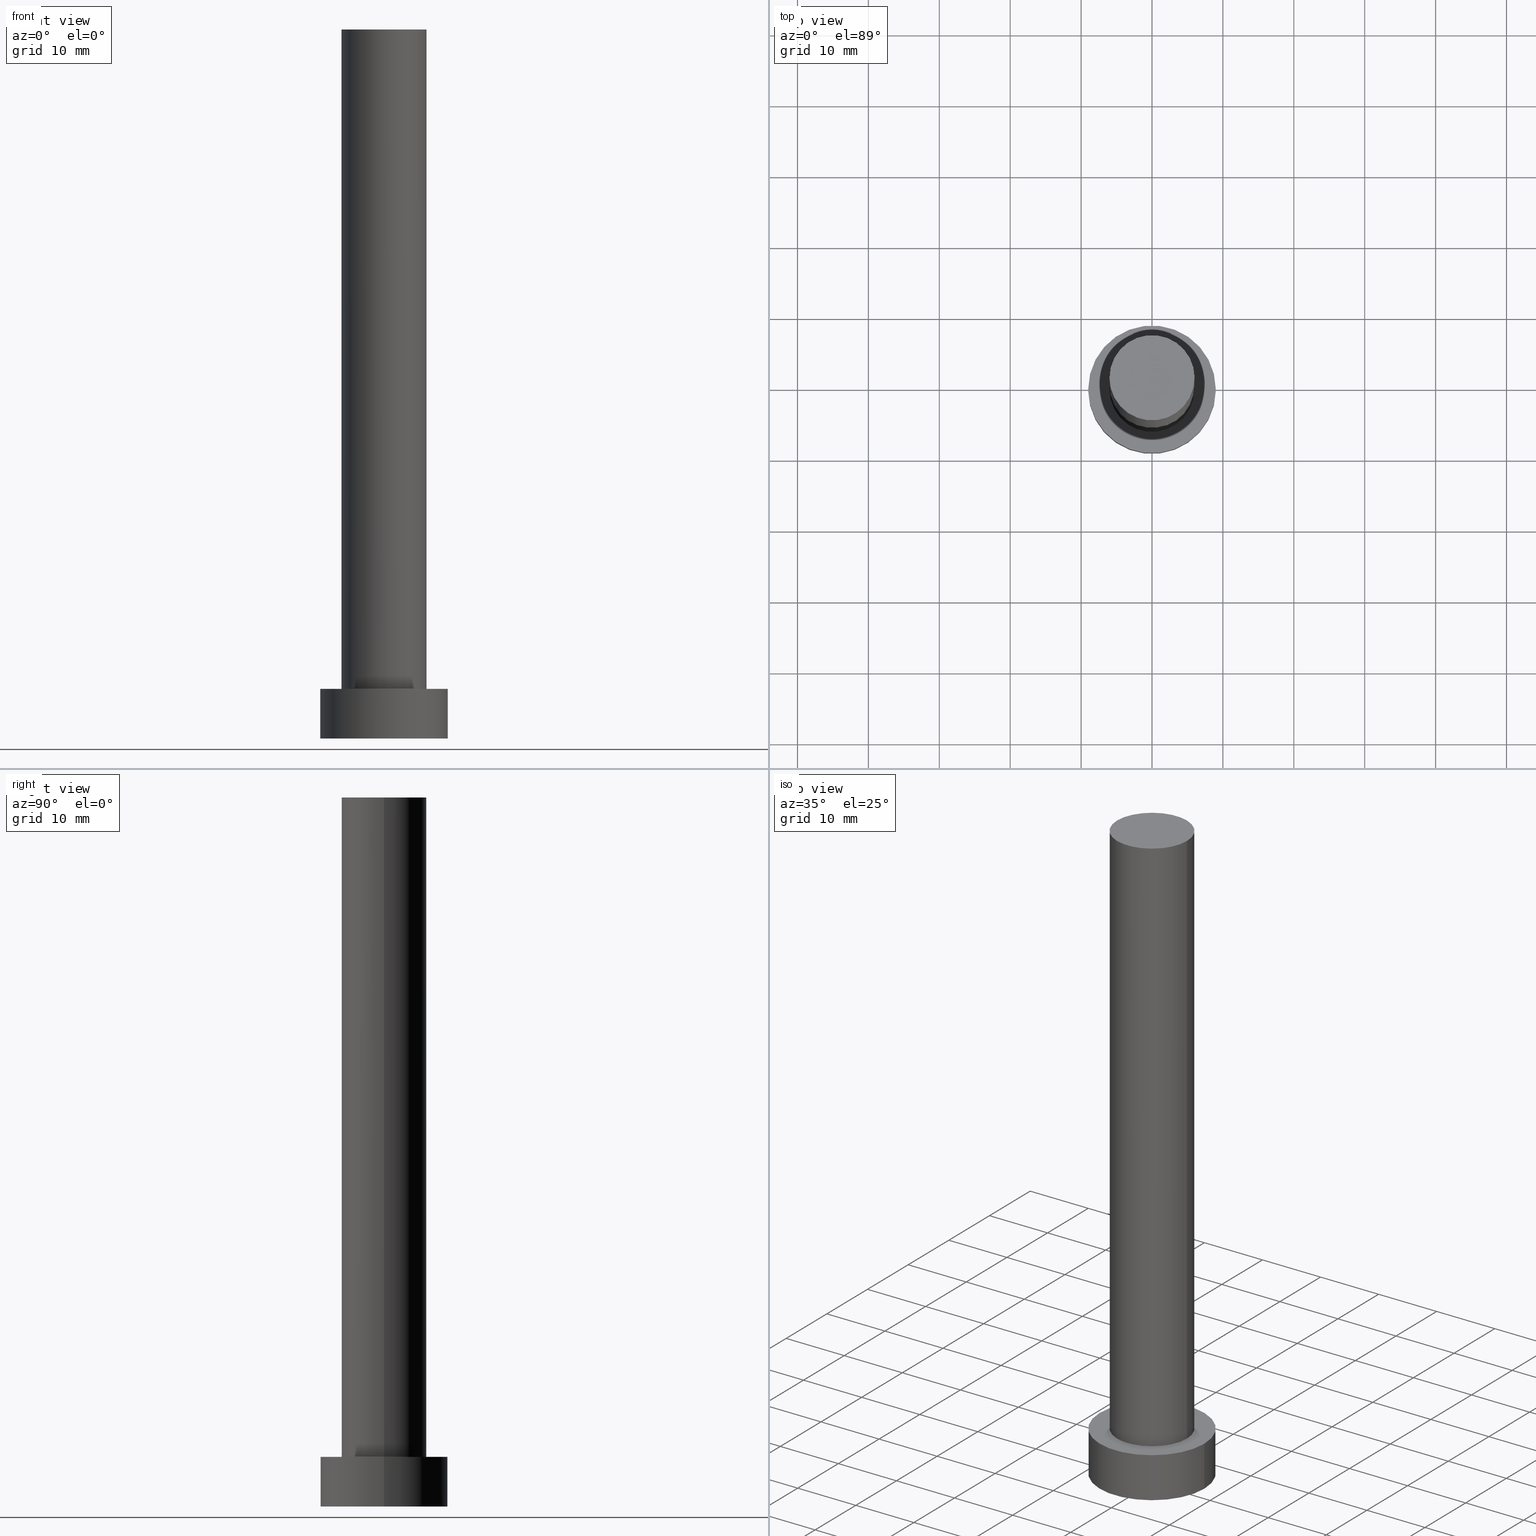
[diagram: canonical four-view strip — front | top / right | iso, engineering-drawing reading convention]
A machine part, canonical four-view strip (front | top / right | iso — engineering-drawing reading convention). The complete STEP part file that produces these views, byte-faithful:
ISO-10303-21;
HEADER;
FILE_DESCRIPTION (( 'STEP AP203' ),
    '1' );
FILE_NAME ('8138.STEP',
    '2023-02-13T09:56:06',
    ( '' ),
    ( '' ),
    'SwSTEP 2.0',
    'SolidWorks 2019',
    '' );
FILE_SCHEMA (( 'CONFIG_CONTROL_DESIGN' ));
ENDSEC;

DATA;
#1 = EDGE_CURVE ( 'NONE', #107, #247, #118, .T. ) ;
#2 = EDGE_LOOP ( 'NONE', ( #39, #7, #182, #8 ) ) ;
#3 = VERTEX_POINT ( 'NONE', #224 ) ;
#4 = CYLINDRICAL_SURFACE ( 'NONE', #234, 6.000000000000000888 ) ;
#5 = AXIS2_PLACEMENT_3D ( 'NONE', #243, #191, #148 ) ;
#6 = MANIFOLD_SOLID_BREP ( 'P�idat vysunut�m3', #134 ) ;
#7 = ORIENTED_EDGE ( 'NONE', *, *, #238, .T. ) ;
#8 = ORIENTED_EDGE ( 'NONE', *, *, #66, .F. ) ;
#9 = CARTESIAN_POINT ( 'NONE',  ( 0.000000000000000000, 0.000000000000000000, 7.000000000000000000 ) ) ;
#10 = EDGE_LOOP ( 'NONE', ( #202, #185, #108, #140 ) ) ;
#11 = CIRCLE ( 'NONE', #218, 6.000000000000000888 ) ;
#12 = FACE_OUTER_BOUND ( 'NONE', #184, .T. ) ;
#13 = CC_DESIGN_APPROVAL ( #116, ( #161 ) ) ;
#14 = CARTESIAN_POINT ( 'NONE',  ( -6.000000000000000888, 0.000000000000000000, 7.000000000000000000 ) ) ;
#15 = APPROVAL_STATUS ( 'not_yet_approved' ) ;
#16 = DIRECTION ( 'NONE',  ( 1.000000000000000000, 0.000000000000000000, 0.000000000000000000 ) ) ;
#17 = CIRCLE ( 'NONE', #106, 6.000000000000000888 ) ;
#18 = APPROVAL_STATUS ( 'not_yet_approved' ) ;
#19 = CALENDAR_DATE ( 2023, 13, 2 ) ;
#20 = CC_DESIGN_PERSON_AND_ORGANIZATION_ASSIGNMENT ( #113, #44, ( #50 ) ) ;
#21 = CARTESIAN_POINT ( 'NONE',  ( 0.000000000000000000, 0.000000000000000000, 100.0000000000000000 ) ) ;
#22 = APPLICATION_PROTOCOL_DEFINITION ( 'international standard', 'config_control_design', 1994, #76 ) ;
#23 = APPROVAL_STATUS ( 'not_yet_approved' ) ;
#24 = DIRECTION ( 'NONE',  ( 0.000000000000000000, 0.000000000000000000, 1.000000000000000000 ) ) ;
#25 = AXIS2_PLACEMENT_3D ( 'NONE', #123, #204, #162 ) ;
#26 = DIRECTION ( 'NONE',  ( -0.000000000000000000, -0.000000000000000000, -1.000000000000000000 ) ) ;
#27 = APPLICATION_CONTEXT ( 'configuration controlled 3d designs of mechanical parts and assemblies' ) ;
#28 = MECHANICAL_CONTEXT ( 'NONE', #27, 'mechanical' ) ;
#29 = ORIENTED_EDGE ( 'NONE', *, *, #221, .F. ) ;
#30 = ORIENTED_EDGE ( 'NONE', *, *, #33, .F. ) ;
#31 = DIRECTION ( 'NONE',  ( 0.000000000000000000, 0.000000000000000000, 1.000000000000000000 ) ) ;
#32 = DIRECTION ( 'NONE',  ( 0.000000000000000000, 0.000000000000000000, 1.000000000000000000 ) ) ;
#33 = EDGE_CURVE ( 'NONE', #37, #242, #17, .T. ) ;
#34 = CARTESIAN_POINT ( 'NONE',  ( 0.000000000000000000, 0.000000000000000000, 7.000000000000000000 ) ) ;
#35 = APPROVAL_PERSON_ORGANIZATION ( #236, #158, #231 ) ;
#36 = CARTESIAN_POINT ( 'NONE',  ( 6.000000000000000888, 7.347880794884119736E-16, 100.0000000000000000 ) ) ;
#37 = VERTEX_POINT ( 'NONE', #14 ) ;
#38 = SHAPE_DEFINITION_REPRESENTATION ( #176, #175 ) ;
#39 = ORIENTED_EDGE ( 'NONE', *, *, #241, .F. ) ;
#40 = PERSON_AND_ORGANIZATION_ROLE ( 'creator' ) ;
#41 = LINE ( 'NONE', #249, #43 ) ;
#42 = PERSON_AND_ORGANIZATION ( #58, #64 ) ;
#43 = VECTOR ( 'NONE', #81, 1000.000000000000000 ) ;
#44 = PERSON_AND_ORGANIZATION_ROLE ( 'creator' ) ;
#45 = FACE_OUTER_BOUND ( 'NONE', #10, .T. ) ;
#46 = ADVANCED_FACE ( 'NONE', ( #92 ), #165, .T. ) ;
#47 = AXIS2_PLACEMENT_3D ( 'NONE', #84, #138, #117 ) ;
#48 = CARTESIAN_POINT ( 'NONE',  ( 0.000000000000000000, 0.000000000000000000, 100.0000000000000000 ) ) ;
#49 = AXIS2_PLACEMENT_3D ( 'NONE', #9, #32, #230 ) ;
#50 = PRODUCT_DEFINITION_FORMATION_WITH_SPECIFIED_SOURCE ( 'LIBOVOLN�', '', #133, .NOT_KNOWN. ) ;
#51 = CARTESIAN_POINT ( 'NONE',  ( 0.000000000000000000, 0.000000000000000000, 0.000000000000000000 ) ) ;
#52 = EDGE_LOOP ( 'NONE', ( #239, #228 ) ) ;
#53 = FACE_OUTER_BOUND ( 'NONE', #52, .T. ) ;
#54 = EDGE_LOOP ( 'NONE', ( #29, #222, #144, #253 ) ) ;
#55 = PERSON_AND_ORGANIZATION_ROLE ( 'design_owner' ) ;
#56 = VECTOR ( 'NONE', #67, 1000.000000000000000 ) ;
#57 = CARTESIAN_POINT ( 'NONE',  ( 0.000000000000000000, 0.000000000000000000, 7.000000000000000000 ) ) ;
#58 = PERSON ( 'NEUR�EN�', 'NEUR�EN�', 'NEUR�EN�', ('NEUR�EN�'), ('NEUR�EN�'), ('NEUR�EN�') ) ;
#59 = DIRECTION ( 'NONE',  ( -1.000000000000000000, 0.000000000000000000, 0.000000000000000000 ) ) ;
#60 = CARTESIAN_POINT ( 'NONE',  ( 0.000000000000000000, 0.000000000000000000, 7.000000000000000000 ) ) ;
#61 = CIRCLE ( 'NONE', #178, 6.000000000000000888 ) ;
#62 = PERSON_AND_ORGANIZATION ( #58, #64 ) ;
#63 = CYLINDRICAL_SURFACE ( 'NONE', #254, 6.000000000000000888 ) ;
#64 = ORGANIZATION ( 'NEUR�EN�', 'NEUR�EN�', '' ) ;
#65 = APPROVAL_ROLE ( '' ) ;
#66 = EDGE_CURVE ( 'NONE', #223, #37, #150, .T. ) ;
#67 = DIRECTION ( 'NONE',  ( -0.000000000000000000, -0.000000000000000000, -1.000000000000000000 ) ) ;
#68 = CC_DESIGN_PERSON_AND_ORGANIZATION_ASSIGNMENT ( #169, #248, ( #50 ) ) ;
#69 = CARTESIAN_POINT ( 'NONE',  ( 9.000000000000000000, 1.102182119232617714E-15, 7.000000000000000000 ) ) ;
#70 = CC_DESIGN_PERSON_AND_ORGANIZATION_ASSIGNMENT ( #126, #55, ( #133 ) ) ;
#71 = VERTEX_POINT ( 'NONE', #36 ) ;
#72 = CC_DESIGN_PERSON_AND_ORGANIZATION_ASSIGNMENT ( #62, #132, ( #97 ) ) ;
#73 = ORIENTED_EDGE ( 'NONE', *, *, #201, .F. ) ;
#74 = VERTEX_POINT ( 'NONE', #233 ) ;
#75 = DIRECTION ( 'NONE',  ( -0.000000000000000000, -0.000000000000000000, -1.000000000000000000 ) ) ;
#76 = APPLICATION_CONTEXT ( 'configuration controlled 3d designs of mechanical parts and assemblies' ) ;
#77 = DIRECTION ( 'NONE',  ( 1.000000000000000000, 0.000000000000000000, 0.000000000000000000 ) ) ;
#78 = CC_DESIGN_PERSON_AND_ORGANIZATION_ASSIGNMENT ( #42, #40, ( #161 ) ) ;
#79 = DATE_AND_TIME ( #19, #179 ) ;
#80 = APPROVAL_DATE_TIME ( #209, #116 ) ;
#81 = DIRECTION ( 'NONE',  ( -0.000000000000000000, -0.000000000000000000, -1.000000000000000000 ) ) ;
#82 = COORDINATED_UNIVERSAL_TIME_OFFSET ( 1, 0, .AHEAD. ) ;
#83 = FACE_OUTER_BOUND ( 'NONE', #93, .T. ) ;
#84 = CARTESIAN_POINT ( 'NONE',  ( 0.000000000000000000, 0.000000000000000000, 7.000000000000000000 ) ) ;
#85 = CIRCLE ( 'NONE', #152, 9.000000000000000000 ) ;
#86 = DIRECTION ( 'NONE',  ( 1.000000000000000000, 0.000000000000000000, 0.000000000000000000 ) ) ;
#87 = CYLINDRICAL_SURFACE ( 'NONE', #47, 9.000000000000000000 ) ;
#88 = APPLICATION_PROTOCOL_DEFINITION ( 'international standard', 'config_control_design', 1994, #27 ) ;
#89 = APPROVAL_PERSON_ORGANIZATION ( #171, #116, #65 ) ;
#90 = ORIENTED_EDGE ( 'NONE', *, *, #177, .F. ) ;
#91 = CARTESIAN_POINT ( 'NONE',  ( 0.000000000000000000, 0.000000000000000000, 7.000000000000000000 ) ) ;
#92 = FACE_OUTER_BOUND ( 'NONE', #54, .T. ) ;
#93 = EDGE_LOOP ( 'NONE', ( #188, #122, #141, #73 ) ) ;
#94 = DESIGN_CONTEXT ( 'detailed design', #76, 'design' ) ;
#95 = COORDINATED_UNIVERSAL_TIME_OFFSET ( 1, 0, .AHEAD. ) ;
#96 = CIRCLE ( 'NONE', #240, 9.000000000000000000 ) ;
#97 = SECURITY_CLASSIFICATION ( '', '', #210 ) ;
#98 = COORDINATED_UNIVERSAL_TIME_OFFSET ( 1, 0, .AHEAD. ) ;
#99 = DIRECTION ( 'NONE',  ( 1.000000000000000000, 0.000000000000000000, 0.000000000000000000 ) ) ;
#100 =( NAMED_UNIT ( * ) SI_UNIT ( $, .STERADIAN. ) SOLID_ANGLE_UNIT ( ) );
#101 = AXIS2_PLACEMENT_3D ( 'NONE', #34, #131, #250 ) ;
#102 = LOCAL_TIME ( 10, 56, 6.000000000000000000, #98 ) ;
#103 = FACE_OUTER_BOUND ( 'NONE', #2, .T. ) ;
#104 = CARTESIAN_POINT ( 'NONE',  ( -9.000000000000000000, 0.000000000000000000, 7.000000000000000000 ) ) ;
#105 = ADVANCED_FACE ( 'NONE', ( #45 ), #63, .T. ) ;
#106 = AXIS2_PLACEMENT_3D ( 'NONE', #91, #147, #125 ) ;
#107 = VERTEX_POINT ( 'NONE', #69 ) ;
#108 = ORIENTED_EDGE ( 'NONE', *, *, #66, .T. ) ;
#109 = LOCAL_TIME ( 10, 56, 6.000000000000000000, #154 ) ;
#110 = ORIENTED_EDGE ( 'NONE', *, *, #196, .T. ) ;
#111 = ADVANCED_FACE ( 'NONE', ( #217 ), #139, .F. ) ;
#112 = CALENDAR_DATE ( 2023, 13, 2 ) ;
#113 = PERSON_AND_ORGANIZATION ( #58, #64 ) ;
#114 = DIRECTION ( 'NONE',  ( -1.000000000000000000, 0.000000000000000000, 0.000000000000000000 ) ) ;
#115 = CARTESIAN_POINT ( 'NONE',  ( 9.000000000000000000, 1.102182119232617714E-15, 7.000000000000000000 ) ) ;
#116 = APPROVAL ( #15, 'NEUR�EN�' ) ;
#117 = DIRECTION ( 'NONE',  ( -1.000000000000000000, 0.000000000000000000, 0.000000000000000000 ) ) ;
#118 = CIRCLE ( 'NONE', #49, 9.000000000000000000 ) ;
#119 = DIRECTION ( 'NONE',  ( 1.000000000000000000, 0.000000000000000000, -0.000000000000000000 ) ) ;
#120 = LOCAL_TIME ( 10, 56, 6.000000000000000000, #137 ) ;
#121 = ORIENTED_EDGE ( 'NONE', *, *, #173, .F. ) ;
#122 = ORIENTED_EDGE ( 'NONE', *, *, #221, .T. ) ;
#123 = CARTESIAN_POINT ( 'NONE',  ( 0.000000000000000000, 0.000000000000000000, 100.0000000000000000 ) ) ;
#124 = APPROVAL ( #18, 'NEUR�EN�' ) ;
#125 = DIRECTION ( 'NONE',  ( 1.000000000000000000, 0.000000000000000000, 0.000000000000000000 ) ) ;
#126 = PERSON_AND_ORGANIZATION ( #58, #64 ) ;
#127 = PLANE ( 'NONE',  #101 ) ;
#128 = CARTESIAN_POINT ( 'NONE',  ( -6.000000000000000888, 0.000000000000000000, 100.0000000000000000 ) ) ;
#129 = ADVANCED_FACE ( 'NONE', ( #103 ), #4, .T. ) ;
#130 = CIRCLE ( 'NONE', #145, 6.000000000000000888 ) ;
#131 = DIRECTION ( 'NONE',  ( 0.000000000000000000, 0.000000000000000000, 1.000000000000000000 ) ) ;
#132 = PERSON_AND_ORGANIZATION_ROLE ( 'classification_officer' ) ;
#133 = PRODUCT ( '8138', '8138', '', ( #28 ) ) ;
#134 = CLOSED_SHELL ( 'NONE', ( #129, #251, #46, #212, #111, #105, #151 ) ) ;
#135 = CC_DESIGN_SECURITY_CLASSIFICATION ( #97, ( #50 ) ) ;
#136 = DATE_AND_TIME ( #232, #156 ) ;
#137 = COORDINATED_UNIVERSAL_TIME_OFFSET ( 1, 0, .AHEAD. ) ;
#138 = DIRECTION ( 'NONE',  ( -0.000000000000000000, -0.000000000000000000, -1.000000000000000000 ) ) ;
#139 = PLANE ( 'NONE',  #187 ) ;
#140 = ORIENTED_EDGE ( 'NONE', *, *, #33, .T. ) ;
#141 = ORIENTED_EDGE ( 'NONE', *, *, #167, .T. ) ;
#142 = DIRECTION ( 'NONE',  ( 0.000000000000000000, 0.000000000000000000, 1.000000000000000000 ) ) ;
#143 = CC_DESIGN_DATE_AND_TIME_ASSIGNMENT ( #136, #194, ( #161 ) ) ;
#144 = ORIENTED_EDGE ( 'NONE', *, *, #201, .T. ) ;
#145 = AXIS2_PLACEMENT_3D ( 'NONE', #57, #142, #16 ) ;
#146 = CC_DESIGN_APPROVAL ( #158, ( #97 ) ) ;
#147 = DIRECTION ( 'NONE',  ( 0.000000000000000000, 0.000000000000000000, 1.000000000000000000 ) ) ;
#148 = DIRECTION ( 'NONE',  ( 1.000000000000000000, 0.000000000000000000, 0.000000000000000000 ) ) ;
#149 = CARTESIAN_POINT ( 'NONE',  ( 0.000000000000000000, 0.000000000000000000, 0.000000000000000000 ) ) ;
#150 = LINE ( 'NONE', #128, #56 ) ;
#151 = ADVANCED_FACE ( 'NONE', ( #53 ), #180, .T. ) ;
#152 = AXIS2_PLACEMENT_3D ( 'NONE', #60, #31, #77 ) ;
#153 = APPROVAL_DATE_TIME ( #174, #158 ) ;
#154 = COORDINATED_UNIVERSAL_TIME_OFFSET ( 1, 0, .AHEAD. ) ;
#155 = DIRECTION ( 'NONE',  ( -0.000000000000000000, -0.000000000000000000, -1.000000000000000000 ) ) ;
#156 = LOCAL_TIME ( 10, 56, 6.000000000000000000, #95 ) ;
#157 = DATE_TIME_ROLE ( 'classification_date' ) ;
#158 = APPROVAL ( #23, 'NEUR�EN�' ) ;
#159 = EDGE_CURVE ( 'NONE', #223, #71, #11, .T. ) ;
#160 = EDGE_LOOP ( 'NONE', ( #121, #220 ) ) ;
#161 = PRODUCT_DEFINITION ( 'NEZN�M�', '', #50, #94 ) ;
#162 = DIRECTION ( 'NONE',  ( 1.000000000000000000, 0.000000000000000000, -0.000000000000000000 ) ) ;
#163 = EDGE_LOOP ( 'NONE', ( #30, #90 ) ) ;
#164 =( GEOMETRIC_REPRESENTATION_CONTEXT ( 3 ) GLOBAL_UNCERTAINTY_ASSIGNED_CONTEXT ( ( #195 ) ) GLOBAL_UNIT_ASSIGNED_CONTEXT ( ( #215, #181, #100 ) ) REPRESENTATION_CONTEXT ( 'NONE', 'WORKASPACE' ) );
#165 = CYLINDRICAL_SURFACE ( 'NONE', #203, 9.000000000000000000 ) ;
#166 = DATE_AND_TIME ( #214, #109 ) ;
#167 = EDGE_CURVE ( 'NONE', #74, #3, #172, .T. ) ;
#168 = FACE_BOUND ( 'NONE', #163, .T. ) ;
#169 = PERSON_AND_ORGANIZATION ( #58, #64 ) ;
#170 = CALENDAR_DATE ( 2023, 13, 2 ) ;
#171 = PERSON_AND_ORGANIZATION ( #58, #64 ) ;
#172 = CIRCLE ( 'NONE', #208, 9.000000000000000000 ) ;
#173 = EDGE_CURVE ( 'NONE', #3, #74, #96, .T. ) ;
#174 = DATE_AND_TIME ( #112, #102 ) ;
#175 = ADVANCED_BREP_SHAPE_REPRESENTATION ( '8138', ( #6, #5 ), #164 ) ;
#176 = PRODUCT_DEFINITION_SHAPE ( 'NONE', 'NONE',  #161 ) ;
#177 = EDGE_CURVE ( 'NONE', #242, #37, #130, .T. ) ;
#178 = AXIS2_PLACEMENT_3D ( 'NONE', #237, #24, #99 ) ;
#179 = LOCAL_TIME ( 10, 56, 6.000000000000000000, #82 ) ;
#180 = PLANE ( 'NONE',  #25 ) ;
#181 =( NAMED_UNIT ( * ) PLANE_ANGLE_UNIT ( ) SI_UNIT ( $, .RADIAN. ) );
#182 = ORIENTED_EDGE ( 'NONE', *, *, #177, .T. ) ;
#183 = DIRECTION ( 'NONE',  ( 0.000000000000000000, 0.000000000000000000, 1.000000000000000000 ) ) ;
#184 = EDGE_LOOP ( 'NONE', ( #110, #226 ) ) ;
#185 = ORIENTED_EDGE ( 'NONE', *, *, #159, .F. ) ;
#186 = LINE ( 'NONE', #207, #235 ) ;
#187 = AXIS2_PLACEMENT_3D ( 'NONE', #51, #183, #119 ) ;
#188 = ORIENTED_EDGE ( 'NONE', *, *, #1, .F. ) ;
#189 = APPROVAL_PERSON_ORGANIZATION ( #193, #124, #197 ) ;
#190 = CARTESIAN_POINT ( 'NONE',  ( 0.000000000000000000, 0.000000000000000000, 0.000000000000000000 ) ) ;
#191 = DIRECTION ( 'NONE',  ( 0.000000000000000000, 0.000000000000000000, 1.000000000000000000 ) ) ;
#192 = DIRECTION ( 'NONE',  ( 1.000000000000000000, 0.000000000000000000, 0.000000000000000000 ) ) ;
#193 = PERSON_AND_ORGANIZATION ( #58, #64 ) ;
#194 = DATE_TIME_ROLE ( 'creation_date' ) ;
#195 = UNCERTAINTY_MEASURE_WITH_UNIT (LENGTH_MEASURE( 1.000000000000000082E-05 ), #215, 'distance_accuracy_value', 'NONE');
#196 = EDGE_CURVE ( 'NONE', #247, #107, #85, .T. ) ;
#197 = APPROVAL_ROLE ( '' ) ;
#198 = DIRECTION ( 'NONE',  ( -0.000000000000000000, -0.000000000000000000, -1.000000000000000000 ) ) ;
#199 = CARTESIAN_POINT ( 'NONE',  ( -6.000000000000000888, 0.000000000000000000, 100.0000000000000000 ) ) ;
#200 = DIRECTION ( 'NONE',  ( 0.000000000000000000, 0.000000000000000000, 1.000000000000000000 ) ) ;
#201 = EDGE_CURVE ( 'NONE', #247, #3, #186, .T. ) ;
#202 = ORIENTED_EDGE ( 'NONE', *, *, #238, .F. ) ;
#203 = AXIS2_PLACEMENT_3D ( 'NONE', #246, #75, #59 ) ;
#204 = DIRECTION ( 'NONE',  ( 0.000000000000000000, 0.000000000000000000, 1.000000000000000000 ) ) ;
#205 = CC_DESIGN_DATE_AND_TIME_ASSIGNMENT ( #79, #157, ( #97 ) ) ;
#206 = DIRECTION ( 'NONE',  ( 1.000000000000000000, 0.000000000000000000, 0.000000000000000000 ) ) ;
#207 = CARTESIAN_POINT ( 'NONE',  ( -9.000000000000000000, 0.000000000000000000, 7.000000000000000000 ) ) ;
#208 = AXIS2_PLACEMENT_3D ( 'NONE', #190, #244, #192 ) ;
#209 = DATE_AND_TIME ( #170, #120 ) ;
#210 = SECURITY_CLASSIFICATION_LEVEL ( 'unclassified' ) ;
#211 = APPROVAL_DATE_TIME ( #166, #124 ) ;
#212 = ADVANCED_FACE ( 'NONE', ( #168, #12 ), #127, .T. ) ;
#213 = LINE ( 'NONE', #115, #225 ) ;
#214 = CALENDAR_DATE ( 2023, 13, 2 ) ;
#215 =( LENGTH_UNIT ( ) NAMED_UNIT ( * ) SI_UNIT ( .MILLI., .METRE. ) );
#216 = CARTESIAN_POINT ( 'NONE',  ( 0.000000000000000000, 0.000000000000000000, 100.0000000000000000 ) ) ;
#217 = FACE_OUTER_BOUND ( 'NONE', #160, .T. ) ;
#218 = AXIS2_PLACEMENT_3D ( 'NONE', #48, #200, #86 ) ;
#219 = CC_DESIGN_APPROVAL ( #124, ( #50 ) ) ;
#220 = ORIENTED_EDGE ( 'NONE', *, *, #167, .F. ) ;
#221 = EDGE_CURVE ( 'NONE', #107, #74, #213, .T. ) ;
#222 = ORIENTED_EDGE ( 'NONE', *, *, #196, .F. ) ;
#223 = VERTEX_POINT ( 'NONE', #199 ) ;
#224 = CARTESIAN_POINT ( 'NONE',  ( -9.000000000000000000, 0.000000000000000000, 0.000000000000000000 ) ) ;
#225 = VECTOR ( 'NONE', #198, 1000.000000000000000 ) ;
#226 = ORIENTED_EDGE ( 'NONE', *, *, #1, .T. ) ;
#227 = DIRECTION ( 'NONE',  ( 0.000000000000000000, 0.000000000000000000, 1.000000000000000000 ) ) ;
#228 = ORIENTED_EDGE ( 'NONE', *, *, #241, .T. ) ;
#229 = DIRECTION ( 'NONE',  ( -0.000000000000000000, -0.000000000000000000, -1.000000000000000000 ) ) ;
#230 = DIRECTION ( 'NONE',  ( 1.000000000000000000, 0.000000000000000000, 0.000000000000000000 ) ) ;
#231 = APPROVAL_ROLE ( '' ) ;
#232 = CALENDAR_DATE ( 2023, 13, 2 ) ;
#233 = CARTESIAN_POINT ( 'NONE',  ( 9.000000000000000000, 1.102182119232617714E-15, 0.000000000000000000 ) ) ;
#234 = AXIS2_PLACEMENT_3D ( 'NONE', #216, #26, #255 ) ;
#235 = VECTOR ( 'NONE', #229, 1000.000000000000000 ) ;
#236 = PERSON_AND_ORGANIZATION ( #58, #64 ) ;
#237 = CARTESIAN_POINT ( 'NONE',  ( 0.000000000000000000, 0.000000000000000000, 100.0000000000000000 ) ) ;
#238 = EDGE_CURVE ( 'NONE', #71, #242, #41, .T. ) ;
#239 = ORIENTED_EDGE ( 'NONE', *, *, #159, .T. ) ;
#240 = AXIS2_PLACEMENT_3D ( 'NONE', #149, #227, #206 ) ;
#241 = EDGE_CURVE ( 'NONE', #71, #223, #61, .T. ) ;
#242 = VERTEX_POINT ( 'NONE', #252 ) ;
#243 = CARTESIAN_POINT ( 'NONE',  ( 0.000000000000000000, 0.000000000000000000, 0.000000000000000000 ) ) ;
#244 = DIRECTION ( 'NONE',  ( 0.000000000000000000, 0.000000000000000000, 1.000000000000000000 ) ) ;
#245 = PRODUCT_RELATED_PRODUCT_CATEGORY ( 'detail', '', ( #133 ) ) ;
#246 = CARTESIAN_POINT ( 'NONE',  ( 0.000000000000000000, 0.000000000000000000, 7.000000000000000000 ) ) ;
#247 = VERTEX_POINT ( 'NONE', #104 ) ;
#248 = PERSON_AND_ORGANIZATION_ROLE ( 'design_supplier' ) ;
#249 = CARTESIAN_POINT ( 'NONE',  ( 6.000000000000000888, 7.347880794884119736E-16, 100.0000000000000000 ) ) ;
#250 = DIRECTION ( 'NONE',  ( 1.000000000000000000, 0.000000000000000000, -0.000000000000000000 ) ) ;
#251 = ADVANCED_FACE ( 'NONE', ( #83 ), #87, .T. ) ;
#252 = CARTESIAN_POINT ( 'NONE',  ( 6.000000000000000888, 7.347880794884119736E-16, 7.000000000000000000 ) ) ;
#253 = ORIENTED_EDGE ( 'NONE', *, *, #173, .T. ) ;
#254 = AXIS2_PLACEMENT_3D ( 'NONE', #21, #155, #114 ) ;
#255 = DIRECTION ( 'NONE',  ( -1.000000000000000000, 0.000000000000000000, 0.000000000000000000 ) ) ;
ENDSEC;
END-ISO-10303-21;
